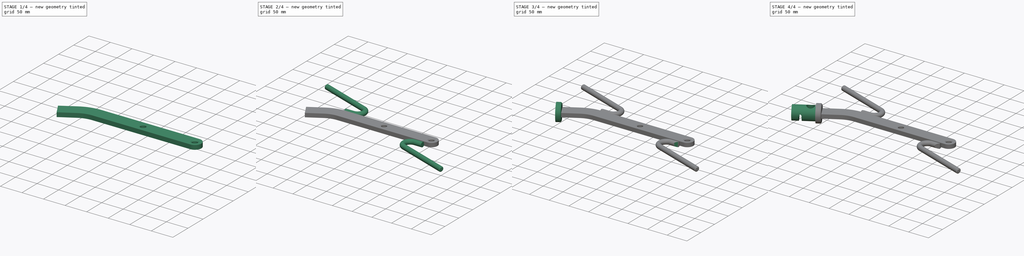
[diagram: build sequence overview — one tinted view per stage of 4, left to right]
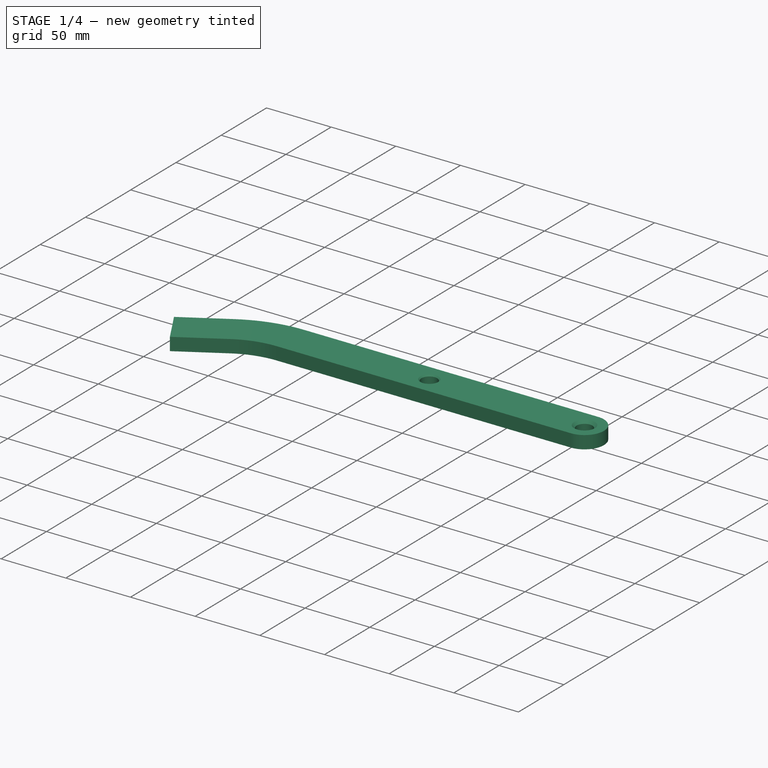
[diagram: stage 1 of 4 — iso view after this stage's code; geometry added in this stage tinted green]
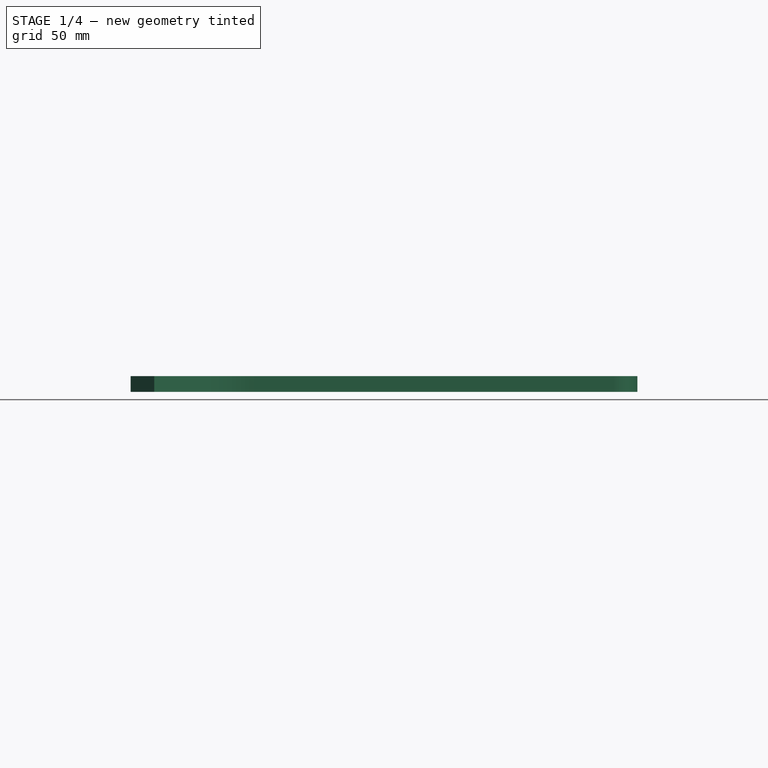
[diagram: stage 1 of 4 — front view after this stage's code; geometry added in this stage tinted green]
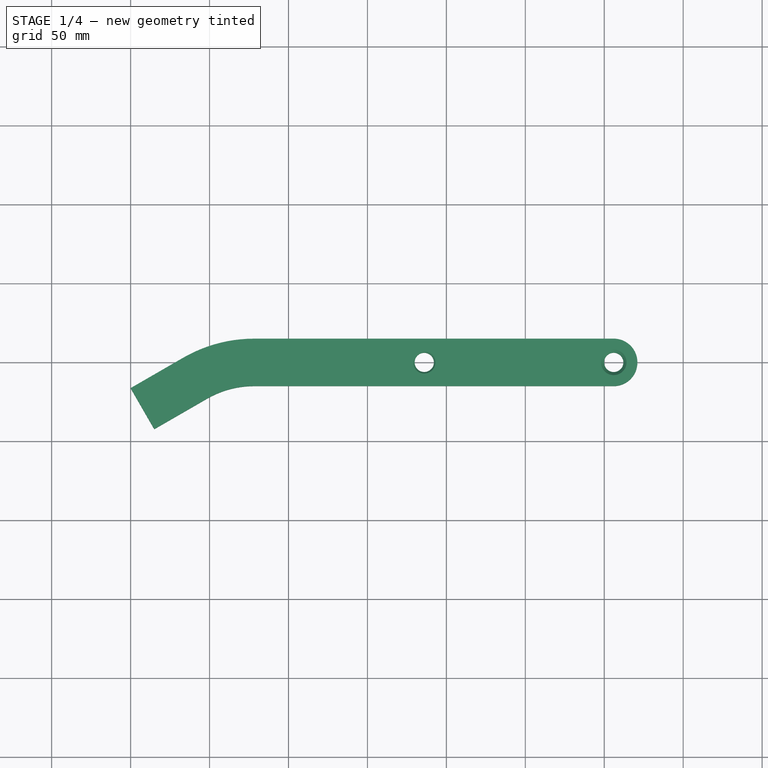
[diagram: stage 1 of 4 — top view after this stage's code; geometry added in this stage tinted green]
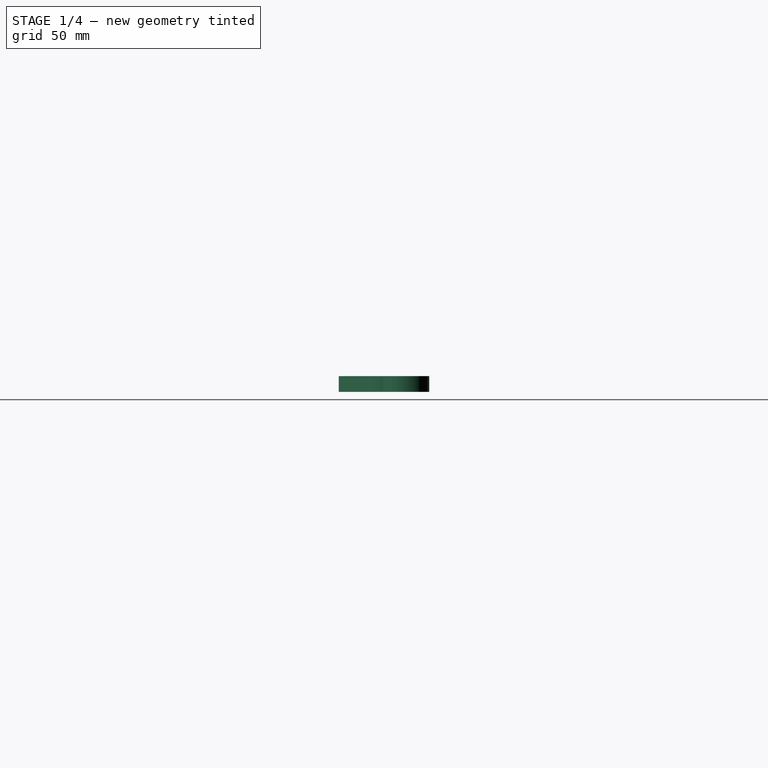
[diagram: stage 1 of 4 — right view after this stage's code; geometry added in this stage tinted green]
FCSTD DOCUMENT  (FreeCAD 0.17R11586 (Git))
Label: Arm B
License: All rights reserved
LicenseURL: http://en.wikipedia.org/wiki/All_rights_reserved
objects: Sketcher::SketchObject×11, PartDesign::Chamfer×4, PartDesign::Pad×3, PartDesign::Plane×3, PartDesign::Pocket×3, PartDesign::AdditivePipe×2, PartDesign::Body×1
note: 35 computed .brp shape members not serialized (recipe doc carries the construction recipe); baked Part::Feature solids carry a one-line shape summary decoded from their .brp

FEATURE [Sketcher::SketchObject] Sketch
  MapMode = 5
  Support = -> [XY_Plane]
  sketch-geometry (10):
    g0: LineSegment StartX=78.3619 StartY=15 StartZ=0 EndX=306 EndY=15 EndZ=0
    g1: LineSegment StartX=78.3619 StartY=-15 StartZ=0 EndX=306 EndY=-15 EndZ=0
    g2: ArcOfCircle CenterX=306 CenterY=0 CenterZ=0 NormalX=0 NormalY=0 NormalZ=1 Radius=15 StartAngle=4.71239 EndAngle=7.85398
    g3: Circle CenterX=306 CenterY=0 CenterZ=0 NormalX=0 NormalY=0 NormalZ=1 Radius=6.1
    g4: ArcOfCircle CenterX=78.3619 CenterY=-75 CenterZ=0 NormalX=0 NormalY=0 NormalZ=1 Radius=90 StartAngle=1.5708 EndAngle=2.0944
    g5: ArcOfCircle CenterX=78.3619 CenterY=-75 CenterZ=0 NormalX=0 NormalY=0 NormalZ=1 Radius=60 StartAngle=1.5708 EndAngle=2.0944
    g6: LineSegment StartX=48.3619 StartY=-23.0385 StartZ=0 EndX=15 EndY=-42.3 EndZ=0
    g7: LineSegment StartX=33.3619 StartY=2.94224 StartZ=0 EndX=0 EndY=-16.3192 EndZ=0
    g8: LineSegment StartX=15 StartY=-42.3 StartZ=0 EndX=0 EndY=-16.3192 EndZ=0
    g9: Circle CenterX=186 CenterY=0 CenterZ=0 NormalX=0 NormalY=0 NormalZ=1 Radius=6.1
  constraints (30):
    c: Horizontal(g0)
    c: Horizontal(g1)
    c: Symmetric(g1,g0,g-1)
    c: Coincident(g2,g0)
    c: Coincident(g2,g1)
    c: Coincident(g3,g2)
    c: Tangent(g2,g1)
    c: Coincident(g4,g0)
    c: Coincident(g5,g1)
    c: Tangent(g0,g4)
    c: Tangent(g5,g1)
    c: Coincident(g4,g5)
    c: Coincident(g6,g5)
    c: Coincident(g7,g4)
    c: Coincident(g8,g6)
    c: Coincident(g8,g7)
    c: Parallel(g6,g7)
    c: Tangent(g5,g6)
    c: Tangent(g4,g7)
    c: Angle(g6,g8) = 1.5708
    c: Radius(g2) = 15
    c: Radius(g3) = 6.1
    c: Angle(g6,g1) = 2.61799
    c: Radius(g5) = 60
    c: PointOnObject(g9,g-1)
    c: Radius(g9) = 6.1
    c: DistanceX(g9,g2) = 120
    c: DistanceX(g7,g1) = 306
    c: DistanceY(g6,g0) = 57.3
    c: PointOnObject(g7,g-2)
FEATURE [PartDesign::Pad] Pad
  Length = 10
  Length2 = 100
  Midplane = true
  Profile = -> Sketch
  Type = 0
FEATURE [PartDesign::Chamfer] Chamfer
  Base = -> Pad [Edge30,Edge29]
  BaseFeature = -> Pad
  Size = 1
FEATURE [PartDesign::Chamfer] Chamfer001
  Base = -> Chamfer [Edge25,Edge16]
  BaseFeature = -> Chamfer
  Size = 2
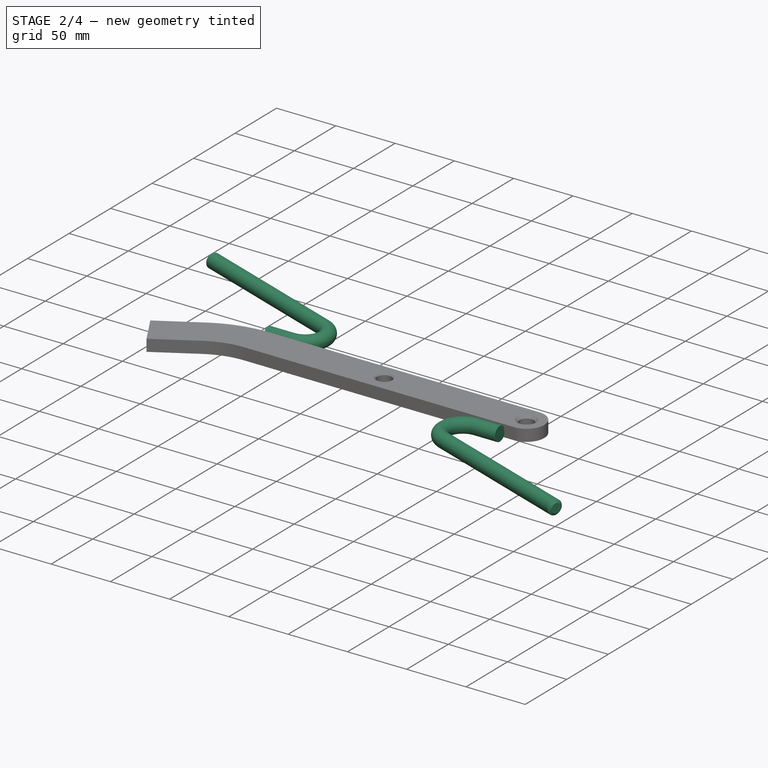
[diagram: stage 2 of 4 — iso view after this stage's code; geometry added in this stage tinted green]
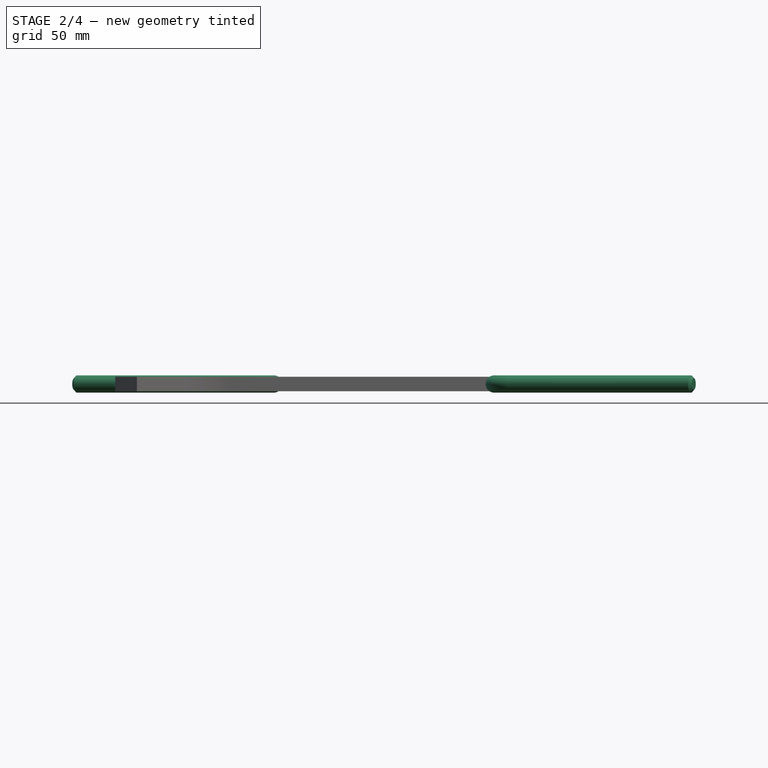
[diagram: stage 2 of 4 — front view after this stage's code; geometry added in this stage tinted green]
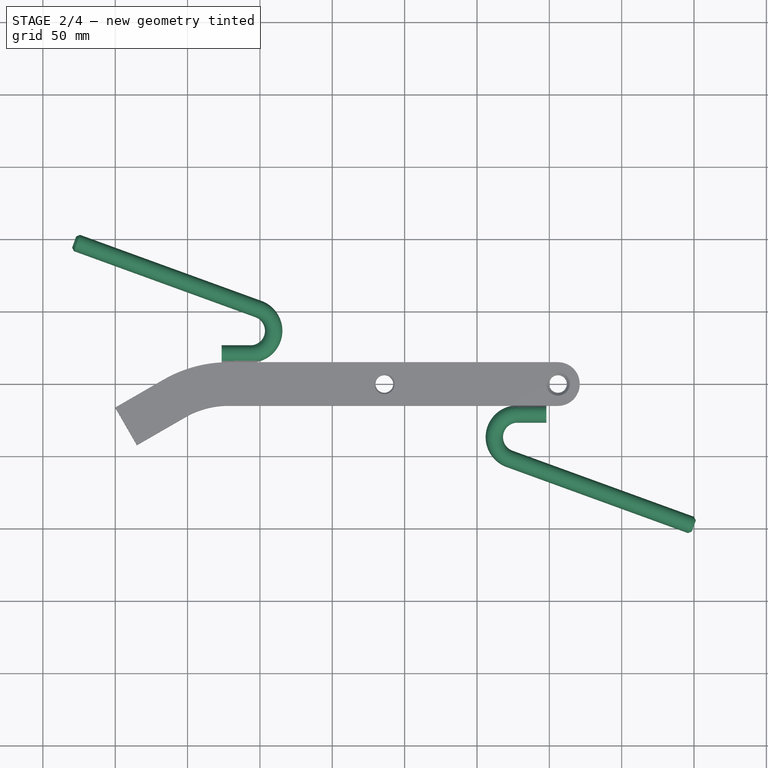
[diagram: stage 2 of 4 — top view after this stage's code; geometry added in this stage tinted green]
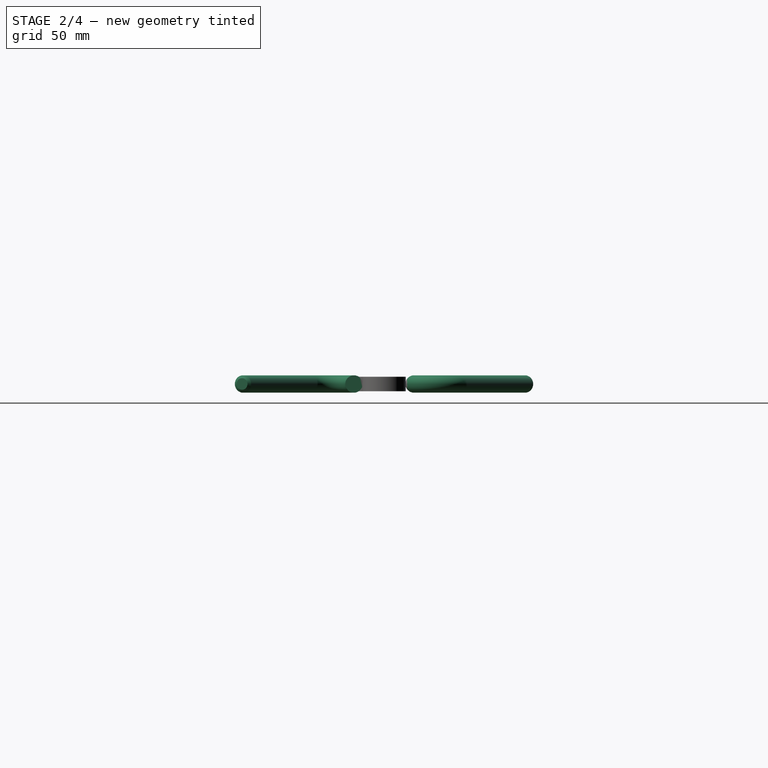
[diagram: stage 2 of 4 — right view after this stage's code; geometry added in this stage tinted green]
FEATURE [Sketcher::SketchObject] Sketch001
  ExternalGeometry = -> [Chamfer001]
  MapMode = 5
  Support = -> [XY_Plane]
  sketch-geometry (3):
    g0: LineSegment StartX=-28.356 StartY=98.1288 StartZ=0 EndX=98.9724 EndY=51.7851 EndZ=0
    g1: ArcOfCircle CenterX=93.5 CenterY=36.75 CenterZ=0 NormalX=0 NormalY=0 NormalZ=1 Radius=16 StartAngle=4.71239 EndAngle=7.50491
    g2: LineSegment StartX=93.5 StartY=20.75 StartZ=0 EndX=73.5 EndY=20.75 EndZ=0
  constraints (11):
    c: Coincident(g1,g0)
    c: Tangent(g1,g0)
    c: Coincident(g2,g1)
    c: Tangent(g1,g2)
    c: Angle(g0,g2) = 0.349066
    c: Distance(g2) = 20
    c: Distance(g0) = 135.5
    c: Radius(g1) = 16
    c: DistanceX(g2,g-3) = 232.5
    c: Horizontal(g2)
    c: DistanceY(g-1,g2) = 20.75
FEATURE [PartDesign::Plane] DatumPlane
  MapMode = 7
  Placement = pos=(-28.356,98.1288,0) rot=(-0.443713,0.633687,0.633687;3.97682rad)
  Support = -> [Sketch001]
FEATURE [Sketcher::SketchObject] Sketch002
  MapMode = 5
  Placement = pos=(-28.356,98.1288,0) rot=(-0.443713,0.633687,0.633687;3.97682rad)
  Support = -> [DatumPlane]
  sketch-geometry (1):
    g0: Circle CenterX=0 CenterY=0 CenterZ=0 NormalX=0 NormalY=0 NormalZ=1 Radius=6
  constraints (2):
    c: Coincident(g0,g-1)
    c: Radius(g0) = 6
FEATURE [PartDesign::AdditivePipe] AdditivePipe
  AuxilleryCurvelinear = true
  AuxillerySpineTangent = false
  BaseFeature = -> Chamfer001
  Binormal = (0,0,0)
  Mode = 0
  Profile = -> Sketch002
  Spine = -> Sketch001
  SpineTangent = false
  Transformation = 0
  Transition = 0
FEATURE [Sketcher::SketchObject] Sketch003
  ExternalGeometry = -> [AdditivePipe]
  MapMode = 5
  Support = -> [XY_Plane]
  sketch-geometry (3):
    g0: LineSegment StartX=298 StartY=-20.75 StartZ=0 EndX=278 EndY=-20.75 EndZ=0
    g1: ArcOfCircle CenterX=278 CenterY=-36.75 CenterZ=0 NormalX=0 NormalY=0 NormalZ=1 Radius=16 StartAngle=1.5708 EndAngle=4.36332
    g2: LineSegment StartX=272.528 StartY=-51.7851 StartZ=0 EndX=399.856 EndY=-98.1288 EndZ=0
  constraints (11):
    c: Horizontal(g0)
    c: Coincident(g1,g0)
    c: Coincident(g2,g1)
    c: Tangent(g2,g1)
    c: Tangent(g0,g1)
    c: DistanceX(g0,g0) = 20
    c: Radius(g1) = 16
    c: Distance(g2) = 135.5
    c: DistanceX(g0,g-3) = 8
    c: DistanceY(g0,g-1) = 20.75
    c: Angle(g2,g0) = 0.349066
FEATURE [PartDesign::Plane] DatumPlane001
  MapMode = 7
  Placement = pos=(399.856,-98.1288,0) rot=(-0.443713,0.633687,0.633687;3.97682rad)
  Support = -> [Sketch003]
FEATURE [Sketcher::SketchObject] Sketch004
  MapMode = 5
  Placement = pos=(399.856,-98.1288,0) rot=(-0.443713,0.633687,0.633687;3.97682rad)
  Support = -> [DatumPlane001]
  sketch-geometry (1):
    g0: Circle CenterX=0 CenterY=0 CenterZ=0 NormalX=0 NormalY=0 NormalZ=1 Radius=6
  constraints (3):
    c: PointOnObject(g0,g-1)
    c: Radius(g0) = 6
    c: Coincident(g0,g-1)
FEATURE [PartDesign::AdditivePipe] AdditivePipe001
  AuxilleryCurvelinear = true
  AuxillerySpineTangent = false
  BaseFeature = -> AdditivePipe
  Binormal = (0,0,0)
  Mode = 0
  Profile = -> Sketch004
  Spine = -> Sketch003
  SpineTangent = false
  Transformation = 0
  Transition = 0
FEATURE [PartDesign::Chamfer] Chamfer002
  Base = -> AdditivePipe001 [Edge63,Edge65]
  BaseFeature = -> AdditivePipe001
  Size = 2
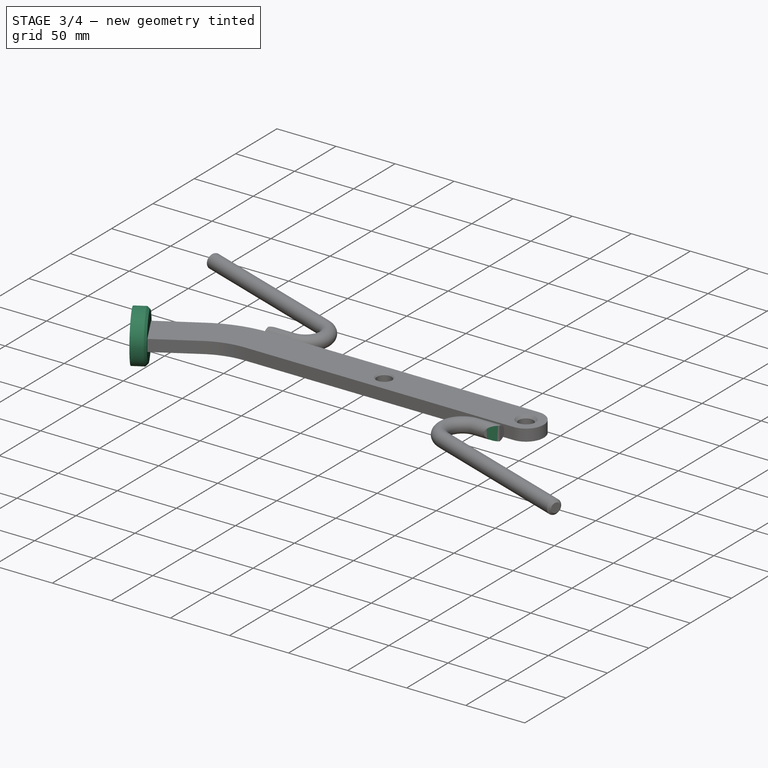
[diagram: stage 3 of 4 — iso view after this stage's code; geometry added in this stage tinted green]
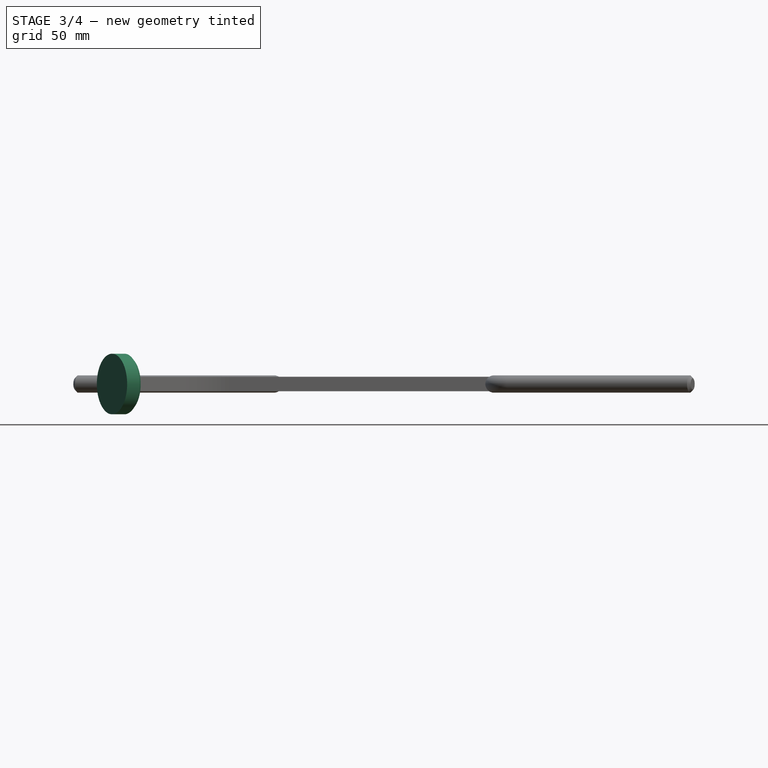
[diagram: stage 3 of 4 — front view after this stage's code; geometry added in this stage tinted green]
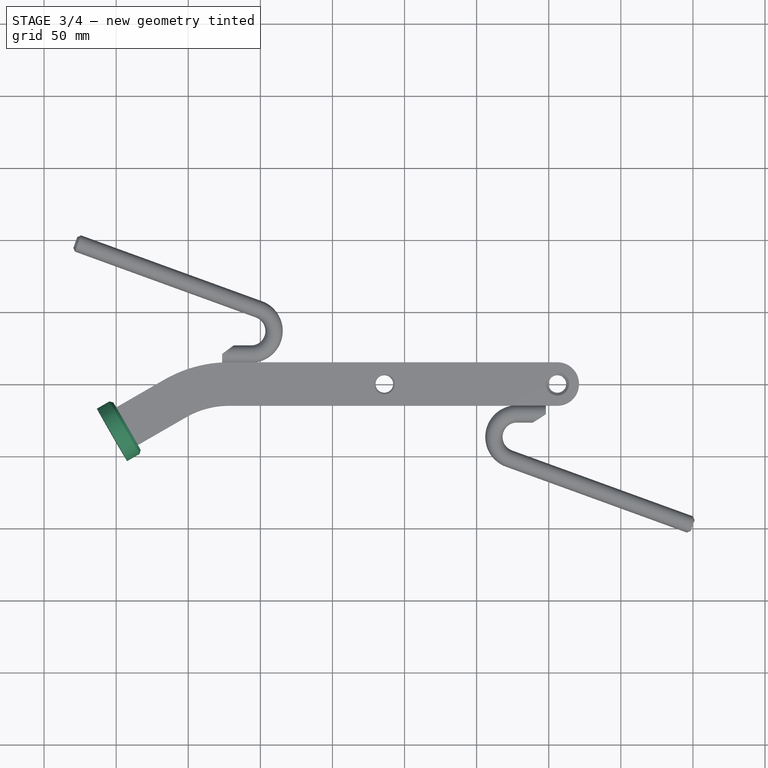
[diagram: stage 3 of 4 — top view after this stage's code; geometry added in this stage tinted green]
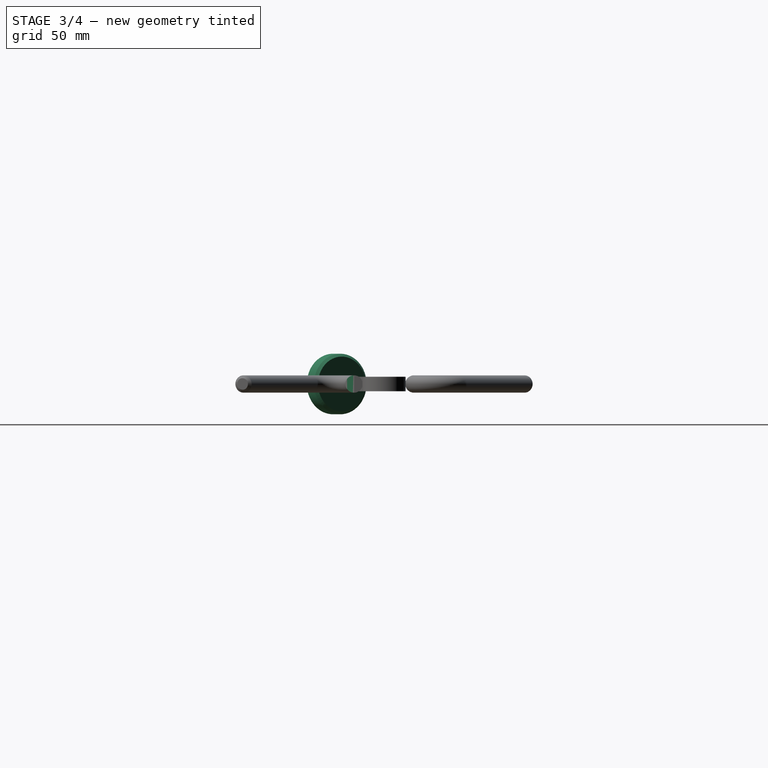
[diagram: stage 3 of 4 — right view after this stage's code; geometry added in this stage tinted green]
FEATURE [Sketcher::SketchObject] Sketch005
  ExternalGeometry = -> [Chamfer002]
  MapMode = 5
  Support = -> [XY_Plane]
  sketch-geometry (6):
    g0: LineSegment StartX=73.5 StartY=26.75 StartZ=0 EndX=81.5 EndY=26.75 EndZ=0
    g1: LineSegment StartX=73.5 StartY=26.75 StartZ=0 EndX=73.5 EndY=20.75 EndZ=0
    g2: LineSegment StartX=81.5 StartY=26.75 StartZ=0 EndX=73.5 EndY=20.75 EndZ=0
    g3: LineSegment StartX=298 StartY=-20.75 StartZ=0 EndX=289 EndY=-26.75 EndZ=0
    g4: LineSegment StartX=289 StartY=-26.75 StartZ=0 EndX=298 EndY=-26.75 EndZ=0
    g5: LineSegment StartX=298 StartY=-26.75 StartZ=0 EndX=298 EndY=-20.75 EndZ=0
  constraints (17):
    c: Coincident(g0,g-3)
    c: Coincident(g1,g0)
    c: Vertical(g1)
    c: Coincident(g2,g1)
    c: DistanceY(g1,g1) = 6
    c: PointOnObject(g0,g-3)
    c: Coincident(g2,g0)
    c: DistanceX(g0,g0) = 8
    c: Coincident(g3,g4)
    c: Horizontal(g4)
    c: Coincident(g4,g5)
    c: Coincident(g5,g3)
    c: Vertical(g5)
    c: DistanceY(g5,g5) = 6
    c: DistanceX(g4,g4) = 9
    c: DistanceX(g3,g-4) = 8
    c: DistanceY(g4,g-4) = 26.75
FEATURE [PartDesign::Pocket] Pocket
  BaseFeature = -> Chamfer002
  Length = 0
  Midplane = true
  Profile = -> Sketch005
  Type = 1
FEATURE [Sketcher::SketchObject] Sketch006
  ExternalGeometry = -> [Pocket]
  MapMode = 5
  Placement = pos=(-7.06644,-4.07981,0) rot=(0.774597,-0.447214,-0.447214;1.82348rad)
  Support = -> [Pocket]
  sketch-geometry (1):
    g0: Circle CenterX=29.1329 CenterY=0 CenterZ=0 NormalX=0 NormalY=0 NormalZ=1 Radius=21
  constraints (3):
    c: Radius(g0) = 21
    c: DistanceX(g-3,g0) = 15
    c: PointOnObject(g0,g-1)
FEATURE [PartDesign::Pad] Pad001
  BaseFeature = -> Pocket
  Length = 12
  Length2 = 100
  Profile = -> Sketch006
  Type = 0
FEATURE [PartDesign::Chamfer] Chamfer003
  Base = -> Pad001 [Edge53]
  BaseFeature = -> Pad001
  Size = 2
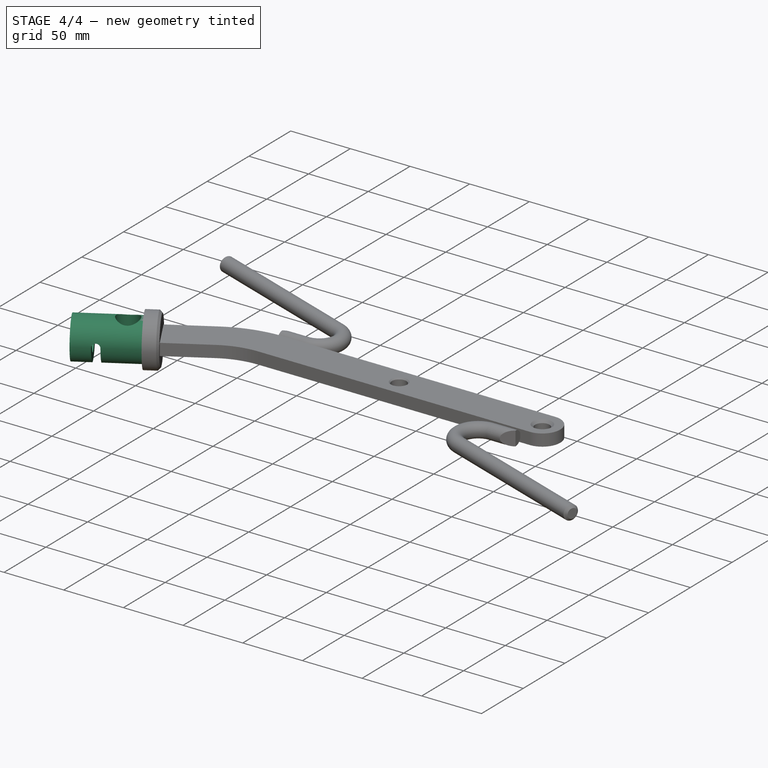
[diagram: stage 4 of 4 — iso view after this stage's code; geometry added in this stage tinted green]
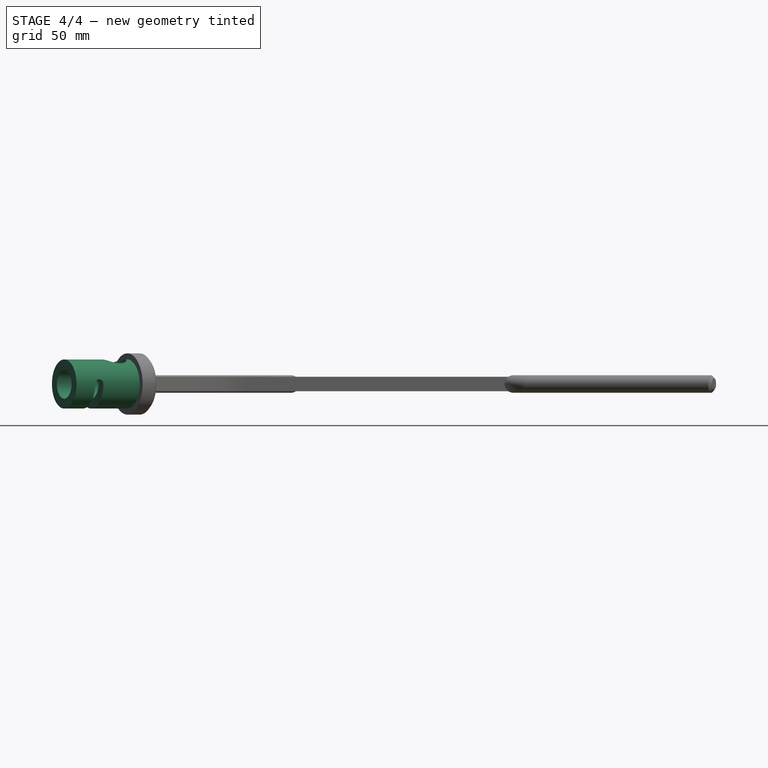
[diagram: stage 4 of 4 — front view after this stage's code; geometry added in this stage tinted green]
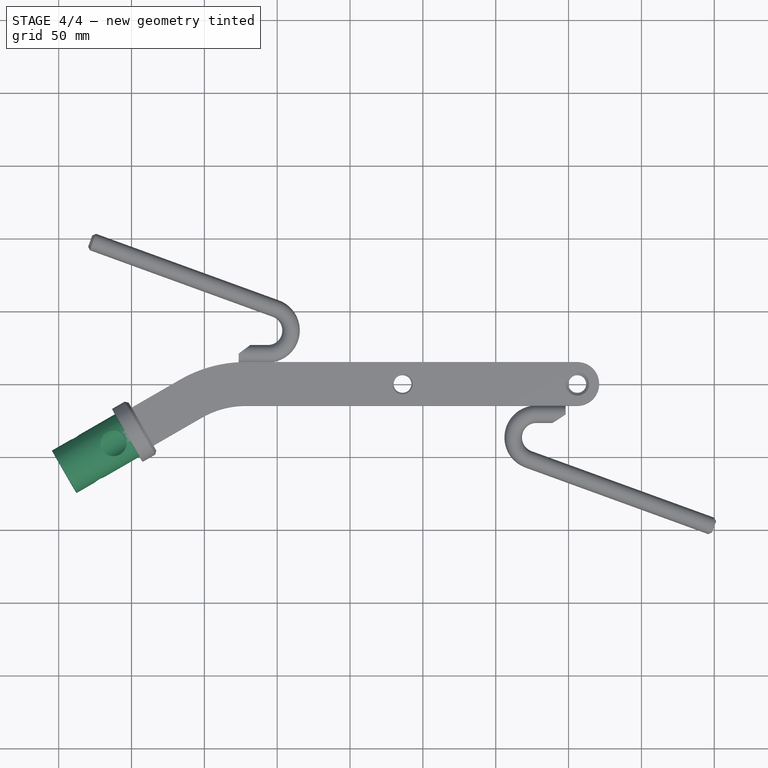
[diagram: stage 4 of 4 — top view after this stage's code; geometry added in this stage tinted green]
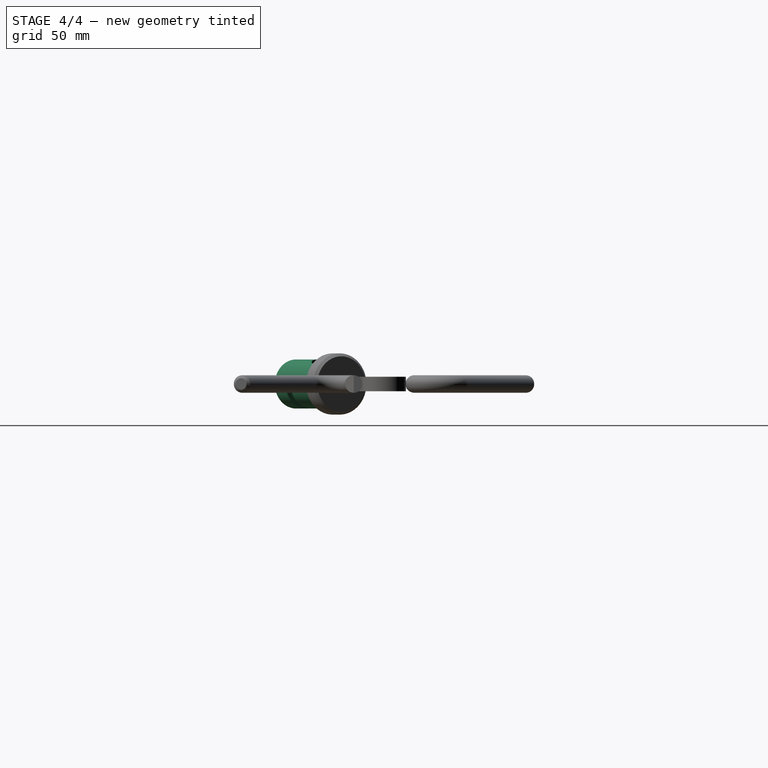
[diagram: stage 4 of 4 — right view after this stage's code; geometry added in this stage tinted green]
FEATURE [Sketcher::SketchObject] Sketch007
  ExternalGeometry = -> [Chamfer003]
  MapMode = 5
  Placement = pos=(-17.4587,-10.0798,0) rot=(0.774597,-0.447214,-0.447214;1.82348rad)
  Support = -> [Chamfer003]
  sketch-geometry (2):
    g0: Circle CenterX=29.1329 CenterY=0 CenterZ=0 NormalX=0 NormalY=0 NormalZ=1 Radius=10.1
    g1: Circle CenterX=29.1329 CenterY=0 CenterZ=0 NormalX=0 NormalY=0 NormalZ=1 Radius=16.85
  constraints (4):
    c: Coincident(g0,g-3)
    c: Coincident(g1,g0)
    c: Radius(g0) = 10.1
    c: Radius(g1) = 16.85
FEATURE [PartDesign::Pad] Pad002
  BaseFeature = -> Chamfer003
  Length = 50
  Length2 = 100
  Profile = -> Sketch007
  Type = 0
FEATURE [Sketcher::SketchObject] Sketch008
  ExternalGeometry = -> [Pad002]
  MapMode = 5
  Support = -> [XY_Plane]
  sketch-geometry (1):
    g0: Circle CenterX=-12.4186 CenterY=-40.8096 CenterZ=0 NormalX=0 NormalY=0 NormalZ=1 Radius=9
  constraints (3):
    c: Radius(g0) = 9
    c: Distance(g0,g-3) = 11
    c: Distance(g0,g-4) = 15
FEATURE [PartDesign::Pocket] Pocket001
  BaseFeature = -> Pad002
  Length = 0
  Profile = -> Sketch008
  Reversed = true
  Type = 1
FEATURE [Sketcher::SketchObject] Sketch009
  ExternalGeometry = -> [Pocket001]
  MapMode = 5
  Support = -> [XY_Plane]
FEATURE [PartDesign::Plane] DatumPlane002
  MapMode = 6
  Placement = pos=(-37.7686,-74.9021,0) rot=(0.654654,-0.377964,0.654654;2.41886rad)
  Support = -> [Pocket001]
FEATURE [Sketcher::SketchObject] Sketch010
  MapMode = 5
  Placement = pos=(-37.7686,-74.9021,0) rot=(0.654654,-0.377964,0.654654;2.41886rad)
  Support = -> [DatumPlane002]
  sketch-geometry (4):
    g0: LineSegment StartX=-16.85 StartY=-14.8 StartZ=0 EndX=0 EndY=-14.8 EndZ=0
    g1: LineSegment StartX=-16.85 StartY=-21.3 StartZ=0 EndX=0 EndY=-21.3 EndZ=0
    g2: ArcOfCircle CenterX=-1.61213e-05 CenterY=-18.05 CenterZ=0 NormalX=0 NormalY=0 NormalZ=1 Radius=3.25 StartAngle=4.71239 EndAngle=7.85398
    g3: LineSegment StartX=-16.85 StartY=-14.8 StartZ=0 EndX=-16.85 EndY=-21.3 EndZ=0
  constraints (13):
    c: Horizontal(g0)
    c: Horizontal(g1)
    c: Equal(g1,g0)
    c: Coincident(g2,g0)
    c: Coincident(g2,g1)
    c: Tangent(g2,g1)
    c: Coincident(g3,g0)
    c: Coincident(g3,g1)
    c: Vertical(g3)
    c: Distance(g3) = 6.5
    c: Distance(g1) = 16.85
    c: DistanceY(g0,g-1) = 14.8
    c: DistanceX(g0,g-1) = 16.85
FEATURE [PartDesign::Pocket] Pocket002
  BaseFeature = -> Pocket001
  Length = 5
  Midplane = true
  Profile = -> Sketch010
  Type = 1
FEATURE [PartDesign::Body] Body
  Group = -> [Sketch,Pad,Chamfer,Chamfer001,Sketch001,DatumPlane,Sketch002,AdditivePipe,Sketch003,DatumPlane001,Sketch004,AdditivePipe001,Chamfer002,Sketch005,Pocket,Sketch006,Pad001,Chamfer003,Sketch007,Pad002,Sketch008,Pocket001,Sketch009,DatumPlane002,Sketch010,Pocket002]
  Origin = -> Origin
  Tip = -> Pocket002
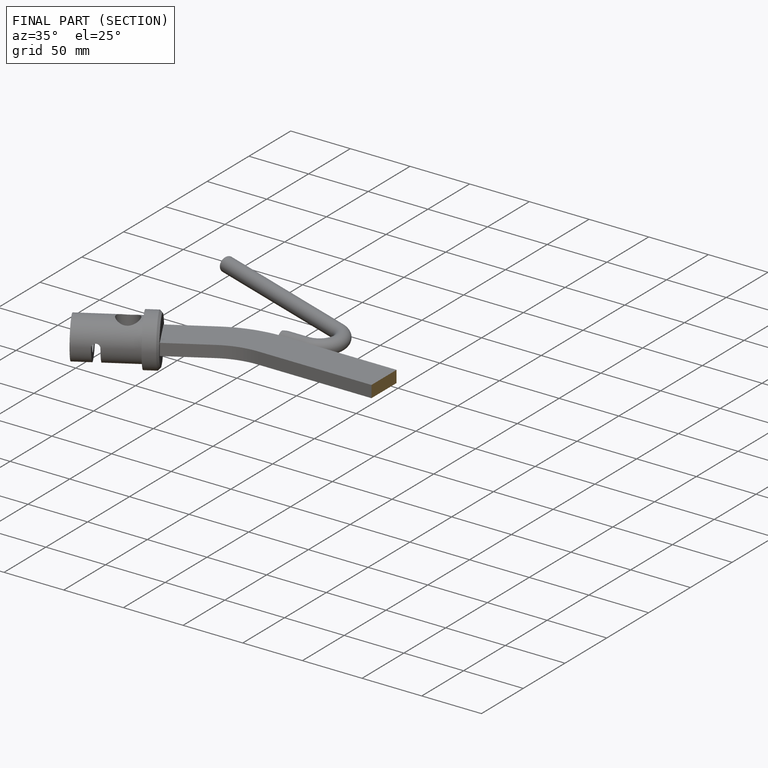
[diagram: finished part — half-section view (interior)]
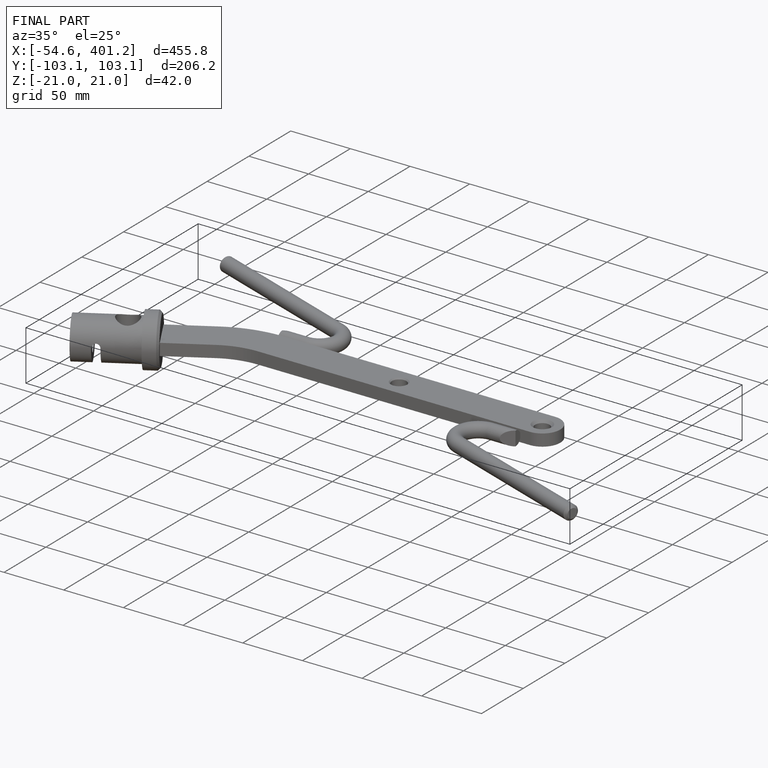
[diagram: finished part — iso view with bounding-box wireframe]
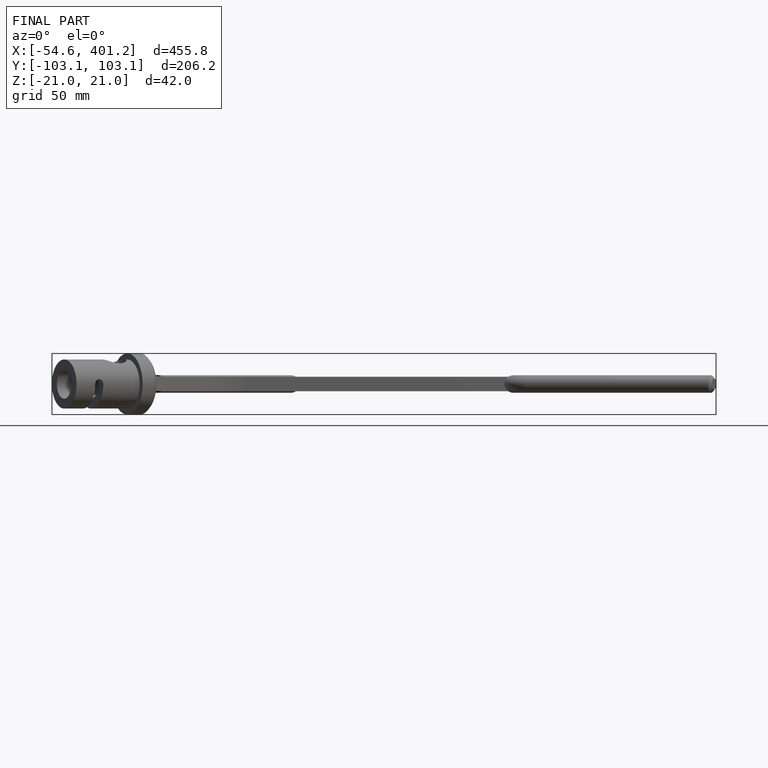
[diagram: finished part — front view with bounding-box wireframe]
